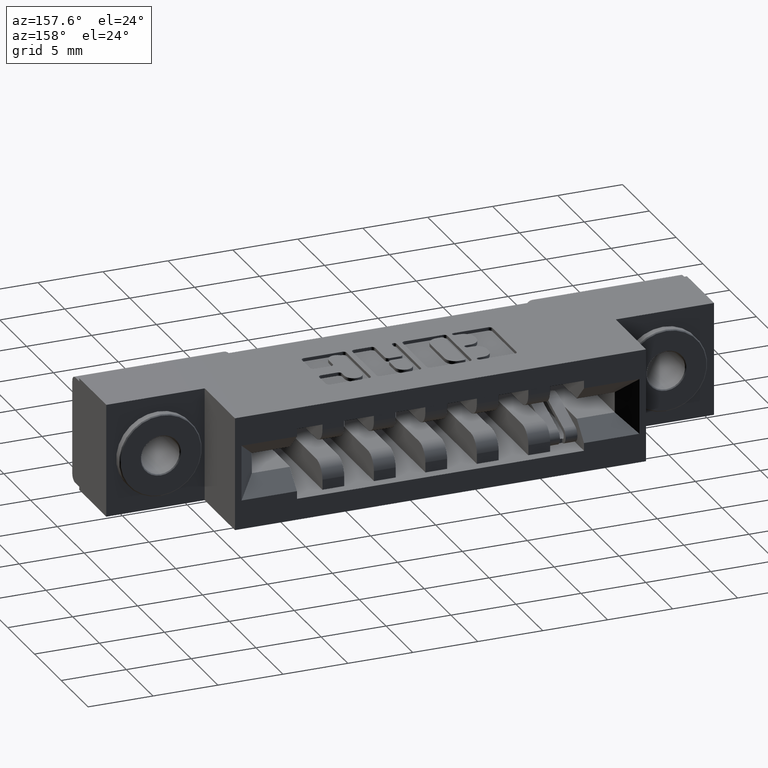
[diagram: clean part render]
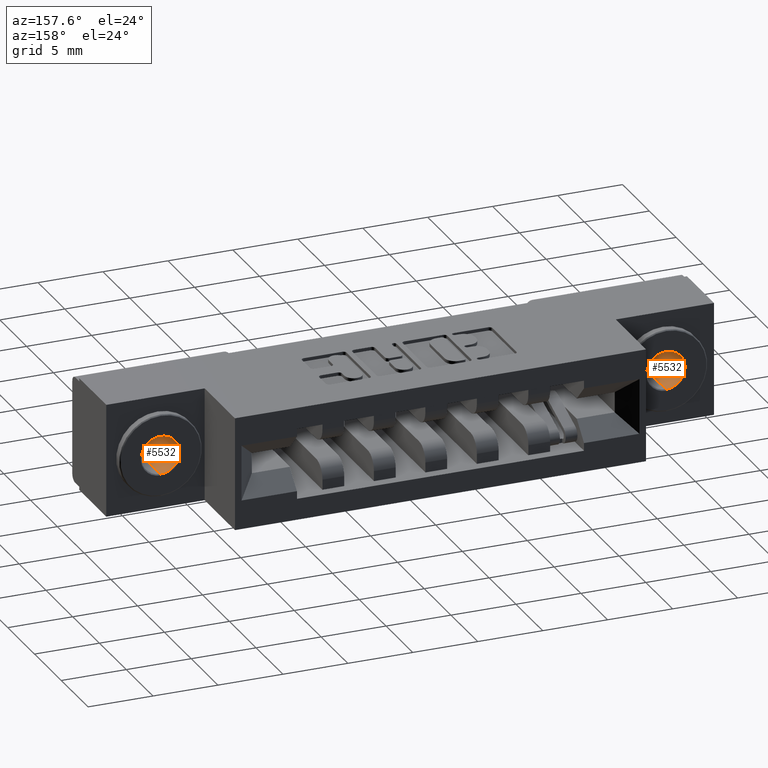
[diagram: same view with one multi-face feature highlighted, each face labeled with its STEP entity id]
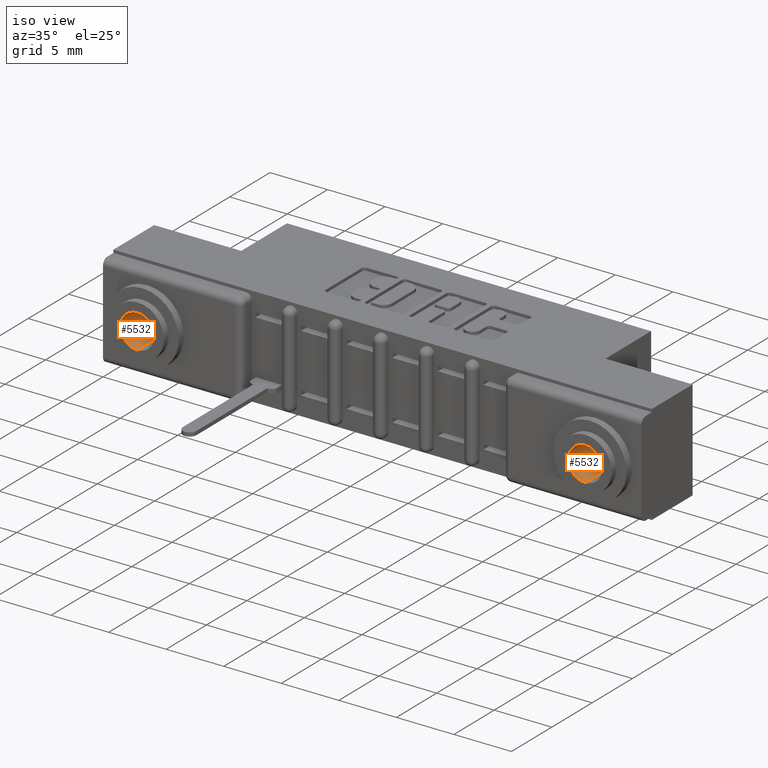
[diagram: same view with one multi-face feature highlighted, each face labeled with its STEP entity id]
A machine part, auxiliary view. The highlighted faces form ONE feature: a constant-radius fillet chain: 2 tangent blend faces with common blend radius 1.4732 mm. The faces share edges in the B-rep.
A second angle (iso view) of the same feature is appended — it is thin or edge-on in the first view.
Their STEP definitions:
[1] entity #5532 (Cylinder):
#40 = CIRCLE ( 'NONE', #2051, 0.05800000000000000300 ) ;
#156 = CARTESIAN_POINT ( 'NONE',  ( 7.102951435054640600E-018, 0.3279999999999999000, -0.05800000000000000300 ) ) ;
#481 = VERTEX_POINT ( 'NONE', #8961 ) ;
#548 = CARTESIAN_POINT ( 'NONE',  ( 7.102951435054649800E-018, -0.1640487732352790300, -0.05800000000000000300 ) ) ;
#816 = ORIENTED_EDGE ( 'NONE', *, *, #6522, .T. ) ;
#957 = DIRECTION ( 'NONE',  ( -2.465190328815661900E-032, 1.000000000000000000, 0.0000000000000000000 ) ) ;
#1048 = ORIENTED_EDGE ( 'NONE', *, *, #4321, .F. ) ;
#1256 = ORIENTED_EDGE ( 'NONE', *, *, #4303, .T. ) ;
#1420 = ORIENTED_EDGE ( 'NONE', *, *, #4320, .T. ) ;
#1755 = CYLINDRICAL_SURFACE ( 'NONE', #2568, 0.05800000000000000300 ) ;
#1777 = FACE_OUTER_BOUND ( 'NONE', #5938, .T. ) ;
#2051 = AXIS2_PLACEMENT_3D ( 'NONE', #8986, #4155, #9687 ) ;
#2337 = DIRECTION ( 'NONE',  ( -2.465190328815661900E-032, 1.000000000000000000, 0.0000000000000000000 ) ) ;
#2568 = AXIS2_PLACEMENT_3D ( 'NONE', #9152, #9533, #9459 ) ;
#2950 = CARTESIAN_POINT ( 'NONE',  ( -1.977074917928553200E-035, -0.1640487732352790300, 0.05800000000000000300 ) ) ;
#2966 = CARTESIAN_POINT ( 'NONE',  ( 7.102951435054640600E-018, 0.002999999999999804000, -0.05800000000000000300 ) ) ;
#3160 = AXIS2_PLACEMENT_3D ( 'NONE', #6581, #957, #9404 ) ;
#3582 = VERTEX_POINT ( 'NONE', #3912 ) ;
#3912 = CARTESIAN_POINT ( 'NONE',  ( -1.977074917928553200E-035, 0.002999999999999804000, 0.05800000000000000300 ) ) ;
#4155 = DIRECTION ( 'NONE',  ( 2.465190328815661900E-032, -1.000000000000000000, -0.0000000000000000000 ) ) ;
#4303 = EDGE_CURVE ( 'NONE', #5403, #4704, #5995, .T. ) ;
#4320 = EDGE_CURVE ( 'NONE', #4704, #481, #5950, .T. ) ;
#4321 = EDGE_CURVE ( 'NONE', #3582, #481, #5936, .T. ) ;
#4704 = VERTEX_POINT ( 'NONE', #156 ) ;
#5403 = VERTEX_POINT ( 'NONE', #2966 ) ;
#5532 = ADVANCED_FACE ( 'NONE', ( #1777 ), #1755, .F. ) ;
#5891 = VECTOR ( 'NONE', #6966, 39.37007874015748100 ) ;
#5924 = VECTOR ( 'NONE', #2337, 39.37007874015748100 ) ;
#5936 = LINE ( 'NONE', #2950, #5891 ) ;
#5938 = EDGE_LOOP ( 'NONE', ( #816, #1256, #1420, #1048 ) ) ;
#5950 = CIRCLE ( 'NONE', #3160, 0.05800000000000000300 ) ;
#5995 = LINE ( 'NONE', #548, #5924 ) ;
#6522 = EDGE_CURVE ( 'NONE', #3582, #5403, #40, .T. ) ;
#6581 = CARTESIAN_POINT ( 'NONE',  ( 0.0000000000000000000, 0.3279999999999999000, 0.0000000000000000000 ) ) ;
#6966 = DIRECTION ( 'NONE',  ( -2.465190328815661900E-032, 1.000000000000000000, 0.0000000000000000000 ) ) ;
#8961 = CARTESIAN_POINT ( 'NONE',  ( -1.977074917928553200E-035, 0.3279999999999999000, 0.05800000000000000300 ) ) ;
#8986 = CARTESIAN_POINT ( 'NONE',  ( 0.0000000000000000000, 0.002999999999999804000, 0.0000000000000000000 ) ) ;
#9152 = CARTESIAN_POINT ( 'NONE',  ( 0.0000000000000000000, -0.1640487732352790300, 0.0000000000000000000 ) ) ;
#9404 = DIRECTION ( 'NONE',  ( -3.408749858497505200E-034, 0.0000000000000000000, 1.000000000000000000 ) ) ;
#9459 = DIRECTION ( 'NONE',  ( -3.408749858497505200E-034, 0.0000000000000000000, 1.000000000000000000 ) ) ;
#9533 = DIRECTION ( 'NONE',  ( -2.465190328815661900E-032, 1.000000000000000000, 0.0000000000000000000 ) ) ;
#9687 = DIRECTION ( 'NONE',  ( -3.408749858497505200E-034, 0.0000000000000000000, 1.000000000000000000 ) ) ;
[2] entity #5532 (Cylinder):
#40 = CIRCLE ( 'NONE', #2051, 0.05800000000000000300 ) ;
#156 = CARTESIAN_POINT ( 'NONE',  ( 7.102951435054640600E-018, 0.3279999999999999000, -0.05800000000000000300 ) ) ;
#481 = VERTEX_POINT ( 'NONE', #8961 ) ;
#548 = CARTESIAN_POINT ( 'NONE',  ( 7.102951435054649800E-018, -0.1640487732352790300, -0.05800000000000000300 ) ) ;
#816 = ORIENTED_EDGE ( 'NONE', *, *, #6522, .T. ) ;
#957 = DIRECTION ( 'NONE',  ( -2.465190328815661900E-032, 1.000000000000000000, 0.0000000000000000000 ) ) ;
#1048 = ORIENTED_EDGE ( 'NONE', *, *, #4321, .F. ) ;
#1256 = ORIENTED_EDGE ( 'NONE', *, *, #4303, .T. ) ;
#1420 = ORIENTED_EDGE ( 'NONE', *, *, #4320, .T. ) ;
#1755 = CYLINDRICAL_SURFACE ( 'NONE', #2568, 0.05800000000000000300 ) ;
#1777 = FACE_OUTER_BOUND ( 'NONE', #5938, .T. ) ;
#2051 = AXIS2_PLACEMENT_3D ( 'NONE', #8986, #4155, #9687 ) ;
#2337 = DIRECTION ( 'NONE',  ( -2.465190328815661900E-032, 1.000000000000000000, 0.0000000000000000000 ) ) ;
#2568 = AXIS2_PLACEMENT_3D ( 'NONE', #9152, #9533, #9459 ) ;
#2950 = CARTESIAN_POINT ( 'NONE',  ( -1.977074917928553200E-035, -0.1640487732352790300, 0.05800000000000000300 ) ) ;
#2966 = CARTESIAN_POINT ( 'NONE',  ( 7.102951435054640600E-018, 0.002999999999999804000, -0.05800000000000000300 ) ) ;
#3160 = AXIS2_PLACEMENT_3D ( 'NONE', #6581, #957, #9404 ) ;
#3582 = VERTEX_POINT ( 'NONE', #3912 ) ;
#3912 = CARTESIAN_POINT ( 'NONE',  ( -1.977074917928553200E-035, 0.002999999999999804000, 0.05800000000000000300 ) ) ;
#4155 = DIRECTION ( 'NONE',  ( 2.465190328815661900E-032, -1.000000000000000000, -0.0000000000000000000 ) ) ;
#4303 = EDGE_CURVE ( 'NONE', #5403, #4704, #5995, .T. ) ;
#4320 = EDGE_CURVE ( 'NONE', #4704, #481, #5950, .T. ) ;
#4321 = EDGE_CURVE ( 'NONE', #3582, #481, #5936, .T. ) ;
#4704 = VERTEX_POINT ( 'NONE', #156 ) ;
#5403 = VERTEX_POINT ( 'NONE', #2966 ) ;
#5532 = ADVANCED_FACE ( 'NONE', ( #1777 ), #1755, .F. ) ;
#5891 = VECTOR ( 'NONE', #6966, 39.37007874015748100 ) ;
#5924 = VECTOR ( 'NONE', #2337, 39.37007874015748100 ) ;
#5936 = LINE ( 'NONE', #2950, #5891 ) ;
#5938 = EDGE_LOOP ( 'NONE', ( #816, #1256, #1420, #1048 ) ) ;
#5950 = CIRCLE ( 'NONE', #3160, 0.05800000000000000300 ) ;
#5995 = LINE ( 'NONE', #548, #5924 ) ;
#6522 = EDGE_CURVE ( 'NONE', #3582, #5403, #40, .T. ) ;
#6581 = CARTESIAN_POINT ( 'NONE',  ( 0.0000000000000000000, 0.3279999999999999000, 0.0000000000000000000 ) ) ;
#6966 = DIRECTION ( 'NONE',  ( -2.465190328815661900E-032, 1.000000000000000000, 0.0000000000000000000 ) ) ;
#8961 = CARTESIAN_POINT ( 'NONE',  ( -1.977074917928553200E-035, 0.3279999999999999000, 0.05800000000000000300 ) ) ;
#8986 = CARTESIAN_POINT ( 'NONE',  ( 0.0000000000000000000, 0.002999999999999804000, 0.0000000000000000000 ) ) ;
#9152 = CARTESIAN_POINT ( 'NONE',  ( 0.0000000000000000000, -0.1640487732352790300, 0.0000000000000000000 ) ) ;
#9404 = DIRECTION ( 'NONE',  ( -3.408749858497505200E-034, 0.0000000000000000000, 1.000000000000000000 ) ) ;
#9459 = DIRECTION ( 'NONE',  ( -3.408749858497505200E-034, 0.0000000000000000000, 1.000000000000000000 ) ) ;
#9533 = DIRECTION ( 'NONE',  ( -2.465190328815661900E-032, 1.000000000000000000, 0.0000000000000000000 ) ) ;
#9687 = DIRECTION ( 'NONE',  ( -3.408749858497505200E-034, 0.0000000000000000000, 1.000000000000000000 ) ) ;